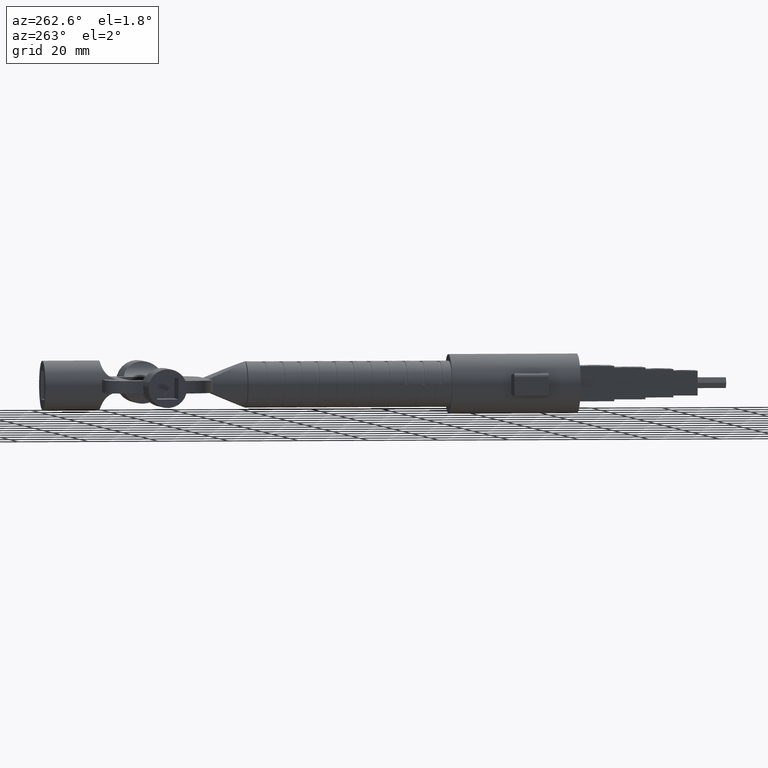
[diagram: clean part render]
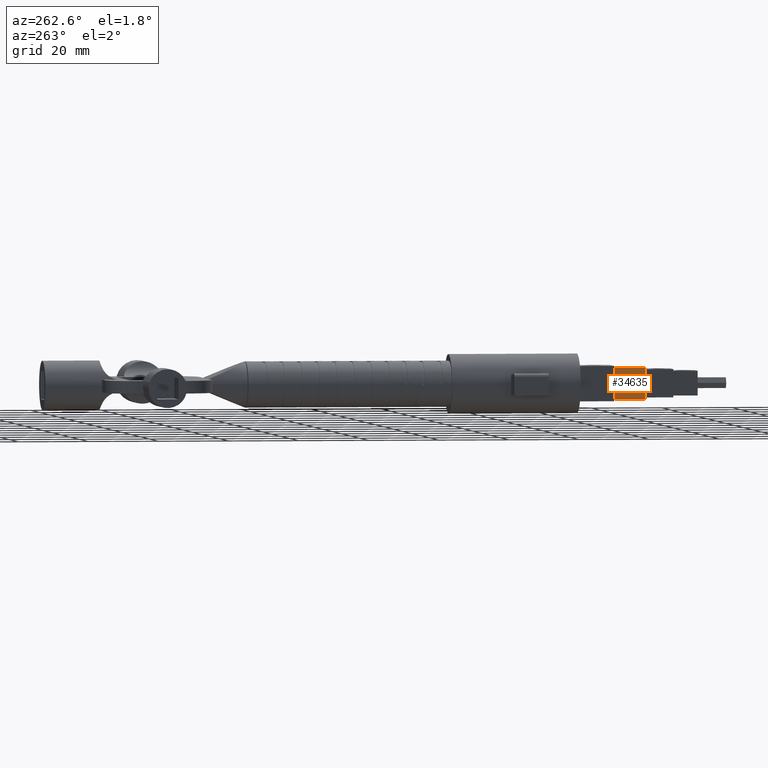
[diagram: same view with one face highlighted and labeled with its STEP entity id]
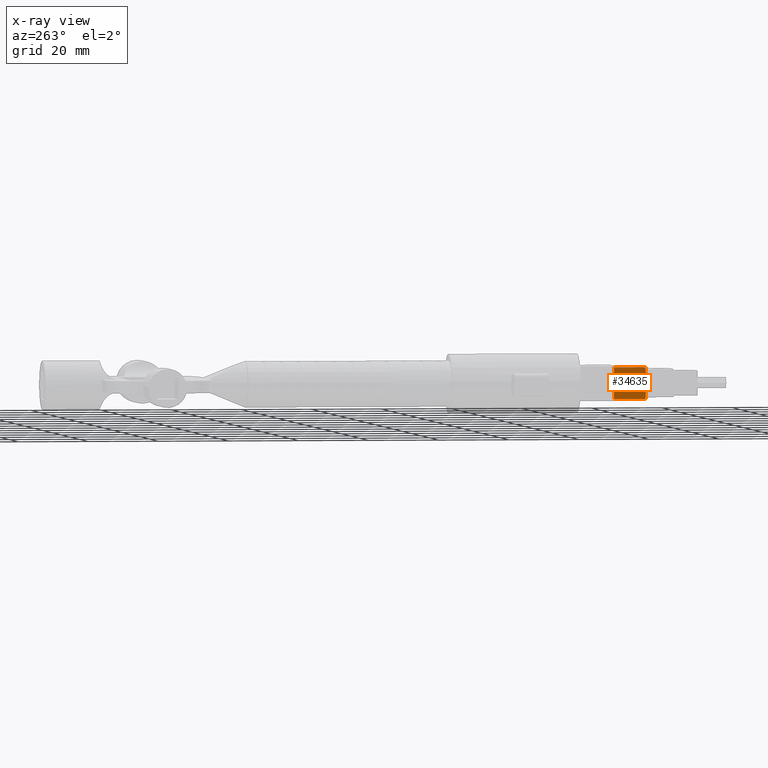
[diagram: x-ray of the same camera — body ghosted, the highlighted face saturated]
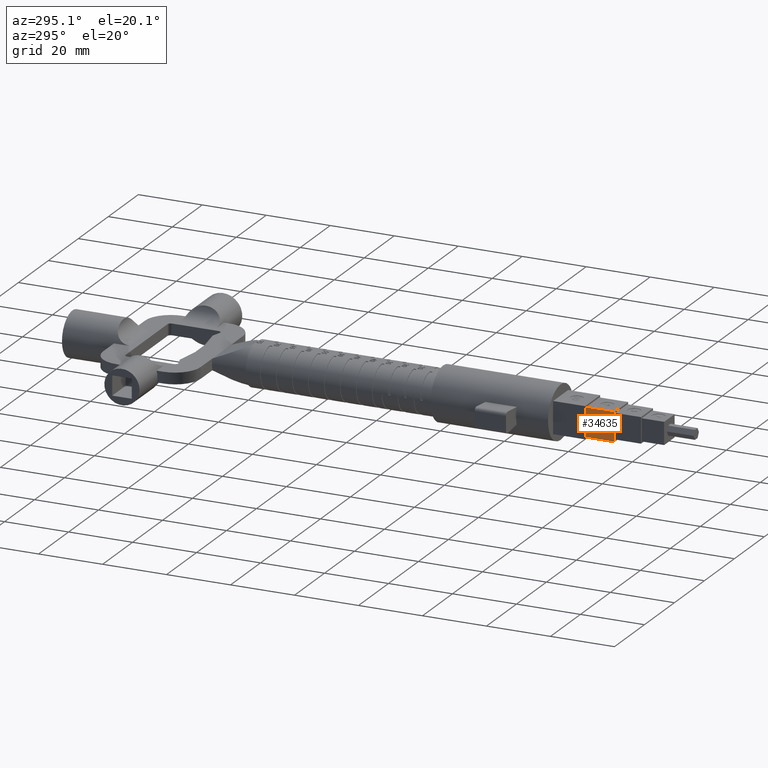
[diagram: same view with one face highlighted and labeled with its STEP entity id]
A machine part, auxiliary view. The second image highlights one B-rep face of the part: STEP entity #34635.
The next image is the same camera in x-ray: the body ghosted, the highlighted face saturated — about 0% of this face is hidden behind the body in this view.
A second angle (auxiliary view) of the same face is appended — the face is thin or edge-on in the first view.
In plain terms, the highlighted planar face has unit normal (1, 0, -0).
Its self-contained STEP definition (entity closure, byte-faithful):
#714 = ORIENTED_EDGE ( 'NONE', *, *, #2268, .T. ) ;
#1339 = CARTESIAN_POINT ( 'NONE',  ( -4.500000000000000000, 32.39999999999999858, -4.500000000000000000 ) ) ;
#1656 = AXIS2_PLACEMENT_3D ( 'NONE', #1339, #31016, #13993 ) ;
#2268 = EDGE_CURVE ( 'NONE', #8013, #16262, #36318, .T. ) ;
#8013 = VERTEX_POINT ( 'NONE', #18473 ) ;
#8151 = CARTESIAN_POINT ( 'NONE',  ( -4.500000000000000000, 23.40000000000000213, -4.500000000000000000 ) ) ;
#8497 = VECTOR ( 'NONE', #54725, 1000.000000000000000 ) ;
#13746 = LINE ( 'NONE', #20425, #42835 ) ;
#13993 = DIRECTION ( 'NONE',  ( -9.637352644315597708E-17, 0.000000000000000000, -1.000000000000000000 ) ) ;
#15662 = ORIENTED_EDGE ( 'NONE', *, *, #41000, .F. ) ;
#16048 = LINE ( 'NONE', #21905, #54479 ) ;
#16262 = VERTEX_POINT ( 'NONE', #17760 ) ;
#16481 = CARTESIAN_POINT ( 'NONE',  ( -4.499999999999999112, 23.40000000000000213, 4.499999999999999112 ) ) ;
#16927 = EDGE_CURVE ( 'NONE', #8013, #45086, #13746, .T. ) ;
#17154 = ORIENTED_EDGE ( 'NONE', *, *, #44356, .T. ) ;
#17760 = CARTESIAN_POINT ( 'NONE',  ( -4.500000000000000000, 23.40000000000000213, -4.500000000000000000 ) ) ;
#18473 = CARTESIAN_POINT ( 'NONE',  ( -4.500000000000000000, 32.39999999999999858, -4.500000000000000000 ) ) ;
#20425 = CARTESIAN_POINT ( 'NONE',  ( -4.500000000000000000, 32.39999999999999858, -4.500000000000000000 ) ) ;
#21905 = CARTESIAN_POINT ( 'NONE',  ( -4.499999999999999112, 32.39999999999999858, 4.499999999999999112 ) ) ;
#29081 = ORIENTED_EDGE ( 'NONE', *, *, #16927, .F. ) ;
#31016 = DIRECTION ( 'NONE',  ( 1.000000000000000000, 0.000000000000000000, -9.637352644315597708E-17 ) ) ;
#34635 = ADVANCED_FACE ( 'NONE', ( #45559 ), #35094, .F. ) ;
#34893 = EDGE_LOOP ( 'NONE', ( #17154, #15662, #29081, #714 ) ) ;
#35094 = PLANE ( 'NONE',  #1656 ) ;
#36318 = LINE ( 'NONE', #42653, #8497 ) ;
#40956 = CARTESIAN_POINT ( 'NONE',  ( -4.499999999999999112, 32.39999999999999858, 4.499999999999999112 ) ) ;
#41000 = EDGE_CURVE ( 'NONE', #45086, #44353, #16048, .T. ) ;
#41533 = DIRECTION ( 'NONE',  ( 9.637352644315597708E-17, 0.000000000000000000, 1.000000000000000000 ) ) ;
#42170 = VECTOR ( 'NONE', #53327, 1000.000000000000000 ) ;
#42653 = CARTESIAN_POINT ( 'NONE',  ( -4.500000000000000000, 32.39999999999999858, -4.500000000000000000 ) ) ;
#42835 = VECTOR ( 'NONE', #41533, 1000.000000000000000 ) ;
#42843 = DIRECTION ( 'NONE',  ( -0.000000000000000000, -1.000000000000000000, -0.000000000000000000 ) ) ;
#44353 = VERTEX_POINT ( 'NONE', #16481 ) ;
#44356 = EDGE_CURVE ( 'NONE', #16262, #44353, #51489, .T. ) ;
#45086 = VERTEX_POINT ( 'NONE', #40956 ) ;
#45559 = FACE_OUTER_BOUND ( 'NONE', #34893, .T. ) ;
#51489 = LINE ( 'NONE', #8151, #42170 ) ;
#53327 = DIRECTION ( 'NONE',  ( 9.637352644315597708E-17, 0.000000000000000000, 1.000000000000000000 ) ) ;
#54479 = VECTOR ( 'NONE', #42843, 1000.000000000000000 ) ;
#54725 = DIRECTION ( 'NONE',  ( -0.000000000000000000, -1.000000000000000000, -0.000000000000000000 ) ) ;